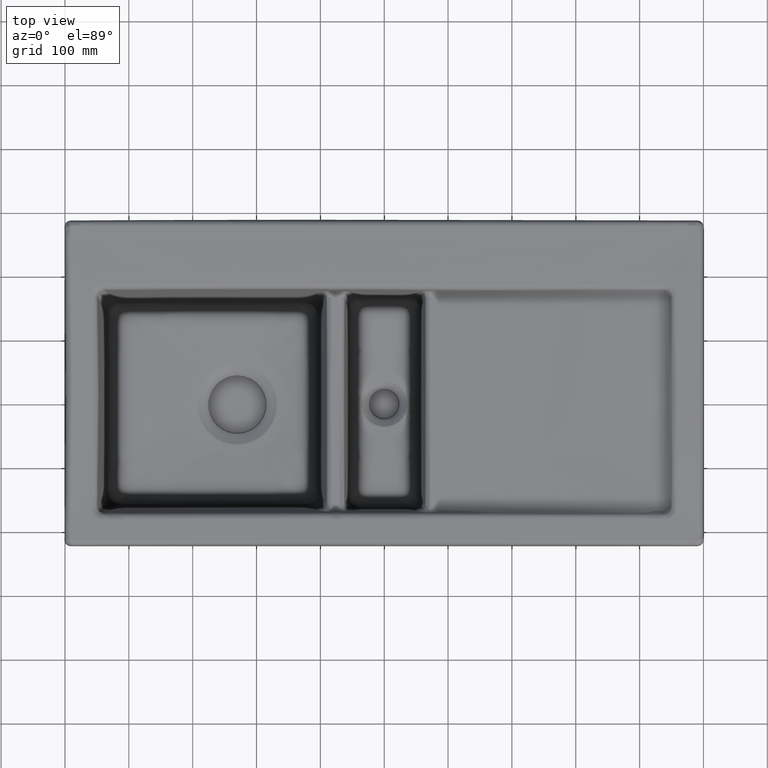
[diagram: clean part render]
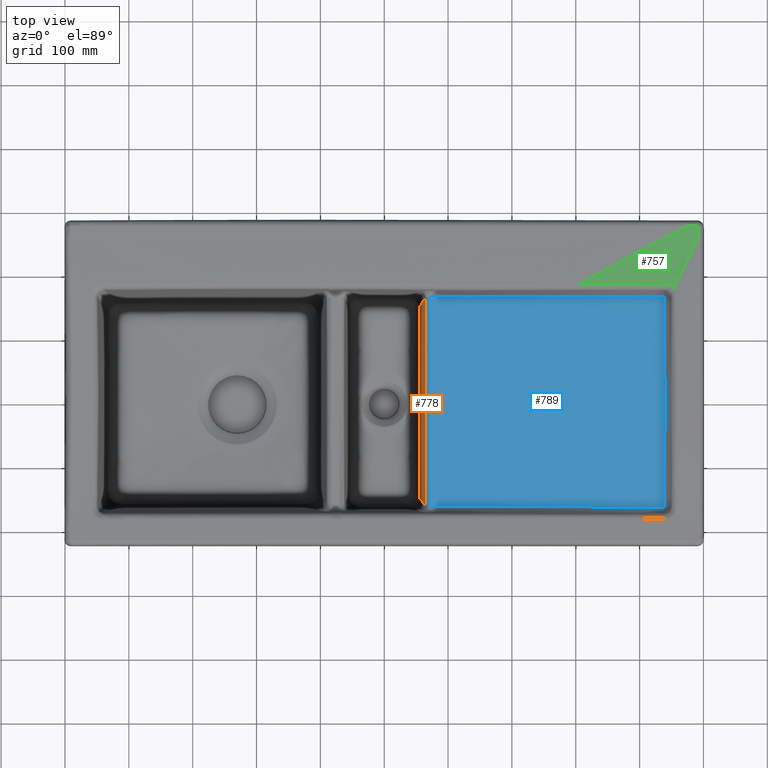
[diagram: same view with three faces highlighted in distinct colors, each labeled with its STEP entity id]
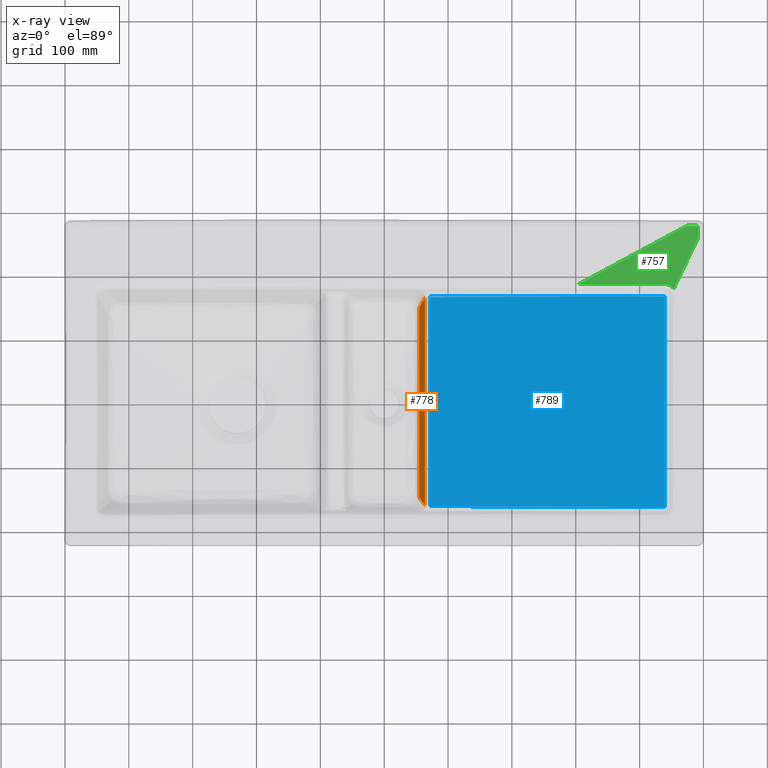
[diagram: x-ray of the same camera — body ghosted, the three highlighted faces saturated]
A machine part, top view with three faces highlighted in distinct colors.
The next image is the same camera in x-ray (body ghosted, the three faces saturated) — at least one of them is partly hidden behind the body in this view.
Their STEP definitions:

[orange] entity #778 — the highlighted face is a freeform B-spline surface patch.
#778=ADVANCED_FACE('',(#1270),#938,.F.);
#938=B_SPLINE_SURFACE_WITH_KNOTS('',1,3,((#33426,#33427,#33428,#33429),
(#33430,#33431,#33432,#33433)),.UNSPECIFIED.,.F.,.F.,.F.,(2,2),(4,4),(0.,
1.),(0.,1.),.UNSPECIFIED.);
#1270=FACE_OUTER_BOUND('',#1629,.T.);
#1629=EDGE_LOOP('',(#3263,#3264,#3265,#3266,#3267,#3268,#3269,#3270));
#3263=ORIENTED_EDGE('',*,*,#4624,.T.);
#3264=ORIENTED_EDGE('',*,*,#4627,.T.);
#3265=ORIENTED_EDGE('',*,*,#4630,.T.);
#3266=ORIENTED_EDGE('',*,*,#4631,.T.);
#3267=ORIENTED_EDGE('',*,*,#4635,.T.);
#3268=ORIENTED_EDGE('',*,*,#4660,.F.);
#3269=ORIENTED_EDGE('',*,*,#4632,.T.);
#3270=ORIENTED_EDGE('',*,*,#4634,.T.);
#3794=VERTEX_POINT('',#31691);
#3796=VERTEX_POINT('',#31808);
#3810=VERTEX_POINT('',#32465);
#3811=VERTEX_POINT('',#32466);
#3812=VERTEX_POINT('',#32521);
#3813=VERTEX_POINT('',#32616);
#3814=VERTEX_POINT('',#32677);
#3815=VERTEX_POINT('',#32729);
#4624=EDGE_CURVE('',#3810,#3811,#5298,.T.);
#4627=EDGE_CURVE('',#3811,#3812,#5300,.T.);
#4630=EDGE_CURVE('',#3812,#3813,#5301,.T.);
#4631=EDGE_CURVE('',#3813,#3796,#5302,.T.);
#4632=EDGE_CURVE('',#3814,#3794,#5303,.T.);
#4634=EDGE_CURVE('',#3794,#3810,#5305,.T.);
#4635=EDGE_CURVE('',#3796,#3815,#5306,.T.);
#4660=EDGE_CURVE('',#3814,#3815,#5326,.T.);
#5298=B_SPLINE_CURVE_WITH_KNOTS('',3,(#32461,#32462,#32463,#32464),
 .UNSPECIFIED.,.F.,.F.,(4,4),(0.,1.),.UNSPECIFIED.);
#5300=B_SPLINE_CURVE_WITH_KNOTS('',3,(#32517,#32518,#32519,#32520),
 .UNSPECIFIED.,.F.,.F.,(4,4),(0.,1.),.UNSPECIFIED.);
#5301=B_SPLINE_CURVE_WITH_KNOTS('',3,(#32617,#32618,#32619,#32620),
 .UNSPECIFIED.,.F.,.F.,(4,4),(0.,1.),.UNSPECIFIED.);
#5302=B_SPLINE_CURVE_WITH_KNOTS('',3,(#32657,#32658,#32659,#32660),
 .UNSPECIFIED.,.F.,.F.,(4,4),(0.,1.),.UNSPECIFIED.);
#5303=B_SPLINE_CURVE_WITH_KNOTS('',3,(#32673,#32674,#32675,#32676),
 .UNSPECIFIED.,.F.,.F.,(4,4),(0.,1.),.UNSPECIFIED.);
#5305=B_SPLINE_CURVE_WITH_KNOTS('',3,(#32709,#32710,#32711,#32712),
 .UNSPECIFIED.,.F.,.F.,(4,4),(0.,1.),.UNSPECIFIED.);
#5306=B_SPLINE_CURVE_WITH_KNOTS('',3,(#32725,#32726,#32727,#32728),
 .UNSPECIFIED.,.F.,.F.,(4,4),(0.,1.),.UNSPECIFIED.);
#5326=B_SPLINE_CURVE_WITH_KNOTS('',3,(#33422,#33423,#33424,#33425),
 .UNSPECIFIED.,.F.,.F.,(4,4),(0.,1.),.UNSPECIFIED.);
#31691=CARTESIAN_POINT('',(54.7709907172785,149.927573718365,-114.133065585962));
#31808=CARTESIAN_POINT('',(54.7490416734624,-146.941787767845,-114.341763947091));
#32461=CARTESIAN_POINT('',(54.7661305298584,84.1916468980175,-114.179277765311));
#32462=CARTESIAN_POINT('',(54.7643644077343,60.3041576916468,-114.196070605852));
#32463=CARTESIAN_POINT('',(54.7625982856103,36.416668485276,-114.212863446394));
#32464=CARTESIAN_POINT('',(54.7608321634862,12.5291792789053,-114.229656286935));
#32465=CARTESIAN_POINT('',(54.7661305298584,84.1916468980175,-114.179277765311));
#32466=CARTESIAN_POINT('',(54.7608320356127,12.5274497399983,-114.229657502796));
#32517=CARTESIAN_POINT('',(54.7608321634862,12.5291792789054,-114.229656286935));
#32518=CARTESIAN_POINT('',(54.760213631294,4.16329060953505,-114.235537484126));
#32519=CARTESIAN_POINT('',(54.7595950991017,-4.20259805983526,-114.241418681316));
#32520=CARTESIAN_POINT('',(54.7589765669095,-12.5684867292056,-114.247299878507));
#32521=CARTESIAN_POINT('',(54.7589764426014,-12.5701680445044,-114.247301060467));
#32616=CARTESIAN_POINT('',(54.7536785507922,-84.2262170149801,-114.297675069799));
#32617=CARTESIAN_POINT('',(54.7589765669095,-12.5684867292055,-114.247299878507));
#32618=CARTESIAN_POINT('',(54.7572105615371,-36.4543968244637,-114.264091608937));
#32619=CARTESIAN_POINT('',(54.7554445561646,-60.3403069197219,-114.280883339368));
#32620=CARTESIAN_POINT('',(54.7536785507922,-84.2262170149801,-114.297675069799));
#32657=CARTESIAN_POINT('',(54.7536785507922,-84.2262170149801,-114.297675069799));
#32658=CARTESIAN_POINT('',(54.7521329250176,-105.131407265481,-114.312371362211));
#32659=CARTESIAN_POINT('',(54.7505872992429,-126.036597515982,-114.327067654622));
#32660=CARTESIAN_POINT('',(54.7490416734683,-146.941787766484,-114.341763947034));
#32673=CARTESIAN_POINT('',(63.7774931988354,163.902530469853,-28.4964281475513));
#32674=CARTESIAN_POINT('',(60.5386088906132,158.991461895319,-59.2927513347334));
#32675=CARTESIAN_POINT('',(57.5364413967633,154.333142977708,-87.8382971475143));
#32676=CARTESIAN_POINT('',(54.7709907172857,149.927573717017,-114.133065585894));
#32677=CARTESIAN_POINT('',(63.7774959266929,163.910365394238,-28.4964022105084));
#32709=CARTESIAN_POINT('',(54.7709907172852,149.927573717017,-114.133065585899));
#32710=CARTESIAN_POINT('',(54.7693706548096,128.015598110684,-114.148469645703));
#32711=CARTESIAN_POINT('',(54.767750592334,106.103622504351,-114.163873705507));
#32712=CARTESIAN_POINT('',(54.7661305298584,84.1916468980175,-114.179277765311));
#32725=CARTESIAN_POINT('',(54.7490416734683,-146.941787766483,-114.341763947034));
#32726=CARTESIAN_POINT('',(57.7582559660553,-151.567674152526,-85.7292149718404));
#32727=CARTESIAN_POINT('',(60.7674702586422,-156.193560538568,-57.1166659966464));
#32728=CARTESIAN_POINT('',(63.7766845512292,-160.819446924611,-28.5041170214524));
#32729=CARTESIAN_POINT('',(63.7766845513091,-160.819446924611,-28.5041170209095));
#33422=CARTESIAN_POINT('',(63.7774927463532,163.918191523429,-28.4964324499157));
#33423=CARTESIAN_POINT('',(63.7805840132679,55.6723048153947,-28.4670397190661));
#33424=CARTESIAN_POINT('',(63.7788698249731,-52.5735585542686,-28.4833387568248));
#33425=CARTESIAN_POINT('',(63.7766845514724,-160.819446924611,-28.504117020008));
#33426=CARTESIAN_POINT('',(54.6948579689191,173.436095401326,-114.856959526123));
#33427=CARTESIAN_POINT('',(54.6948579689191,63.8910381538644,-114.856959526123));
#33428=CARTESIAN_POINT('',(54.6948579689191,-45.6540190935975,-114.856959526123));
#33429=CARTESIAN_POINT('',(54.6948579689191,-155.199076341059,-114.856959526123));
#33430=CARTESIAN_POINT('',(63.833842802879,165.819659219952,-27.9606385198726));
#33431=CARTESIAN_POINT('',(63.833842802879,56.2746019724906,-27.9606385198726));
#33432=CARTESIAN_POINT('',(63.833842802879,-53.2704552749711,-27.9606385198726));
#33433=CARTESIAN_POINT('',(63.833842802879,-162.815512522433,-27.9606385198726));

[blue] entity #789 — the highlighted face is a freeform B-spline surface patch.
#789=ADVANCED_FACE('',(#1281),#944,.T.);
#944=B_SPLINE_SURFACE_WITH_KNOTS('',3,1,((#34065,#34066),(#34067,#34068),
(#34069,#34070),(#34071,#34072),(#34073,#34074),(#34075,#34076),(#34077,
#34078),(#34079,#34080),(#34081,#34082),(#34083,#34084),(#34085,#34086),
(#34087,#34088)),.UNSPECIFIED.,.F.,.F.,.F.,(4,1,1,1,1,1,1,1,1,4),(2,2),
(0.,0.052952468371752,0.139305508239598,0.225658548107443,0.312011587975289,
0.484717667710981,0.657423747446673,0.830129827182365,0.91648286705021,
1.),(0.,1.),.UNSPECIFIED.);
#1281=FACE_OUTER_BOUND('',#1640,.T.);
#1640=EDGE_LOOP('',(#3318,#3319,#3320,#3321,#3322,#3323,#3324,#3325,#3326));
#3318=ORIENTED_EDGE('',*,*,#4667,.T.);
#3319=ORIENTED_EDGE('',*,*,#4669,.T.);
#3320=ORIENTED_EDGE('',*,*,#4354,.T.);
#3321=ORIENTED_EDGE('',*,*,#4671,.T.);
#3322=ORIENTED_EDGE('',*,*,#4674,.T.);
#3323=ORIENTED_EDGE('',*,*,#4673,.T.);
#3324=ORIENTED_EDGE('',*,*,#4675,.T.);
#3325=ORIENTED_EDGE('',*,*,#4676,.T.);
#3326=ORIENTED_EDGE('',*,*,#4677,.T.);
#3661=VERTEX_POINT('',#25537);
#3663=VERTEX_POINT('',#25543);
#3827=VERTEX_POINT('',#33344);
#3828=VERTEX_POINT('',#33444);
#3830=VERTEX_POINT('',#33576);
#3831=VERTEX_POINT('',#33581);
#3832=VERTEX_POINT('',#33684);
#3833=VERTEX_POINT('',#33738);
#3834=VERTEX_POINT('',#33752);
#4354=EDGE_CURVE('',#3663,#3661,#5114,.T.);
#4667=EDGE_CURVE('',#3831,#3830,#5331,.T.);
#4669=EDGE_CURVE('',#3830,#3663,#5332,.T.);
#4671=EDGE_CURVE('',#3661,#3832,#5334,.T.);
#4673=EDGE_CURVE('',#3834,#3833,#5336,.T.);
#4674=EDGE_CURVE('',#3832,#3834,#5337,.T.);
#4675=EDGE_CURVE('',#3833,#3827,#5338,.T.);
#4676=EDGE_CURVE('',#3827,#3828,#5339,.T.);
#4677=EDGE_CURVE('',#3828,#3831,#5340,.T.);
#5114=B_SPLINE_CURVE_WITH_KNOTS('',3,(#25539,#25540,#25541,#25542),
 .UNSPECIFIED.,.F.,.F.,(4,4),(0.,1.),.UNSPECIFIED.);
#5331=B_SPLINE_CURVE_WITH_KNOTS('',3,(#33577,#33578,#33579,#33580),
 .UNSPECIFIED.,.F.,.F.,(4,4),(0.,1.),.UNSPECIFIED.);
#5332=B_SPLINE_CURVE_WITH_KNOTS('',3,(#33603,#33604,#33605,#33606,#33607,
#33608,#33609,#33610,#33611,#33612,#33613,#33614,#33615,#33616,#33617,#33618,
#33619,#33620,#33621,#33622,#33623,#33624,#33625,#33626),.UNSPECIFIED.,
 .F.,.F.,(4,2,2,2,1,1,1,1,1,1,2,2,2,2,4),(0.,0.125,0.25,0.375,0.4375,0.46875,
0.484375,0.4921875,0.49609375,0.498046875,0.4990234375,0.5,0.75,0.875,1.),
 .UNSPECIFIED.);
#5334=B_SPLINE_CURVE_WITH_KNOTS('',3,(#33685,#33686,#33687,#33688),
 .UNSPECIFIED.,.F.,.F.,(4,4),(0.,1.),.UNSPECIFIED.);
#5336=B_SPLINE_CURVE_WITH_KNOTS('',3,(#33739,#33740,#33741,#33742,#33743,
#33744,#33745,#33746,#33747,#33748,#33749,#33750,#33751),.UNSPECIFIED.,
 .F.,.F.,(4,2,1,1,1,2,2,4),(0.,0.499999999999999,0.75,0.875,0.937499999999999,
0.968749999999999,0.984375,1.),.UNSPECIFIED.);
#5337=B_SPLINE_CURVE_WITH_KNOTS('',3,(#33753,#33754,#33755,#33756,#33757,
#33758,#33759,#33760,#33761,#33762,#33763),.UNSPECIFIED.,.F.,.F.,(4,2,2,
2,1,4),(0.,0.5,0.562499999999999,0.624999999999998,0.749999999999999,1.),
 .UNSPECIFIED.);
#5338=B_SPLINE_CURVE_WITH_KNOTS('',3,(#33914,#33915,#33916,#33917),
 .UNSPECIFIED.,.F.,.F.,(4,4),(0.,1.),.UNSPECIFIED.);
#5339=B_SPLINE_CURVE_WITH_KNOTS('',3,(#34017,#34018,#34019,#34020),
 .UNSPECIFIED.,.F.,.F.,(4,4),(0.,1.),.UNSPECIFIED.);
#5340=B_SPLINE_CURVE_WITH_KNOTS('',3,(#34033,#34034,#34035,#34036,#34037,
#34038,#34039,#34040,#34041,#34042,#34043,#34044,#34045,#34046),
 .UNSPECIFIED.,.F.,.F.,(4,2,1,1,1,1,2,2,4),(0.,0.249999999999994,0.374999999999991,
0.43749999999999,0.468749999999989,0.484374999999989,0.492187499999989,
0.499999999999988,1.),.UNSPECIFIED.);
#25537=CARTESIAN_POINT('',(439.034879460699,166.130586375618,-13.3548676672238));
#25539=CARTESIAN_POINT('',(439.533276217138,165.632862331858,-13.3371056541225));
#25540=CARTESIAN_POINT('',(439.533096657149,165.908941362423,-13.3414181505129));
#25541=CARTESIAN_POINT('',(439.31104528191,166.130548574326,-13.3493092932428));
#25542=CARTESIAN_POINT('',(439.034880027934,166.130586375851,-13.3548676558119));
#25543=CARTESIAN_POINT('',(439.53327627774,165.632524219095,-13.3371003758047));
#33344=CARTESIAN_POINT('',(71.5470830644911,165.579831830276,-21.3358193868284));
#33444=CARTESIAN_POINT('',(71.5547055088538,-162.50836230305,-21.3432099478971));
#33576=CARTESIAN_POINT('',(439.548160469104,-163.488478208944,-13.2438856659256));
#33577=CARTESIAN_POINT('',(439.047881762935,-163.987201327335,-13.2589696072825));
#33578=CARTESIAN_POINT('',(439.325005969043,-163.988409286888,-13.2529404355333));
#33579=CARTESIAN_POINT('',(439.548028450086,-163.765899927057,-13.2462490537555));
#33580=CARTESIAN_POINT('',(439.548160469105,-163.488478075875,-13.2438856647933));
#33581=CARTESIAN_POINT('',(439.047881762957,-163.987201327337,-13.258969607282));
#33603=CARTESIAN_POINT('',(439.548160469102,-163.488478342014,-13.2438856670579));
#33604=CARTESIAN_POINT('',(439.548239122288,-149.774618652221,-13.127196249133));
#33605=CARTESIAN_POINT('',(439.551113410071,-136.062539217514,-12.8690164956024));
#33606=CARTESIAN_POINT('',(439.557425976567,-108.637621353857,-12.4070593829658));
#33607=CARTESIAN_POINT('',(439.560675450653,-94.924611637485,-12.2155267133655));
#33608=CARTESIAN_POINT('',(439.567433762245,-67.4976704290727,-11.9256154343009));
#33609=CARTESIAN_POINT('',(439.571006854199,-53.7837907732018,-11.82352504687));
#33610=CARTESIAN_POINT('',(439.576973864487,-33.2127973393627,-11.7241601971278));
#33611=CARTESIAN_POINT('',(439.580102945823,-22.9272541850483,-11.6881443091624));
#33612=CARTESIAN_POINT('',(439.584056152403,-10.9274586831877,-11.6685031303531));
#33613=CARTESIAN_POINT('',(439.586114390693,-4.92757290781445,-11.6640845078507));
#33614=CARTESIAN_POINT('',(439.58716466699,-1.92763435983751,-11.6632016240813));
#33615=CARTESIAN_POINT('',(439.587695044129,-0.427666280809536,-11.6630928859467));
#33616=CARTESIAN_POINT('',(439.587961535877,0.322317446323487,-11.6631218379303));
#33617=CARTESIAN_POINT('',(439.588076025188,0.643738975261237,-11.6631521156495));
#33618=CARTESIAN_POINT('',(439.58815241322,0.858019979189024,-11.6631762735371));
#33619=CARTESIAN_POINT('',(439.588206933636,1.0107981618351,-11.6631971766066));
#33620=CARTESIAN_POINT('',(439.593850734847,16.8170172874661,-11.6655653739847));
#33621=CARTESIAN_POINT('',(439.592176116571,38.4033785577344,-11.7038093686988));
#33622=CARTESIAN_POINT('',(439.578486921542,79.5444397839345,-12.0321457128964));
#33623=CARTESIAN_POINT('',(439.572056673064,94.7183499278137,-12.1884331164867));
#33624=CARTESIAN_POINT('',(439.555460713667,127.985522708036,-12.6612673050345));
#33625=CARTESIAN_POINT('',(439.54529695144,146.077813124112,-13.0316560229156));
#33626=CARTESIAN_POINT('',(439.533276338339,165.632186106333,-13.3370950974809));
#33684=CARTESIAN_POINT('',(305.968518657211,165.992293267107,-16.1023651159856));
#33685=CARTESIAN_POINT('',(439.034879177081,166.130586375501,-13.3548676729297));
#33686=CARTESIAN_POINT('',(395.128021977926,166.112524313068,-14.2382064712706));
#33687=CARTESIAN_POINT('',(350.772568343461,166.060437754106,-15.1507027441969));
#33688=CARTESIAN_POINT('',(305.968518271347,165.992293266518,-16.1023651241826));
#33738=CARTESIAN_POINT('',(161.850510017858,165.728398485528,-19.2621462496021));
#33739=CARTESIAN_POINT('',(224.334813704492,165.855218889883,-17.8681957079217));
#33740=CARTESIAN_POINT('',(214.168876233291,165.836761837364,-18.0920529004707));
#33741=CARTESIAN_POINT('',(203.903406477933,165.817486995303,-18.3195616364173));
#33742=CARTESIAN_POINT('',(188.355903417363,165.786892867684,-18.6663633106494));
#33743=CARTESIAN_POINT('',(180.544827280192,165.771175366804,-18.84114835398));
#33744=CARTESIAN_POINT('',(171.366587057781,165.752003255144,-19.0474953145039));
#33745=CARTESIAN_POINT('',(166.761137430938,165.74219605774,-19.1512773001004));
#33746=CARTESIAN_POINT('',(164.783874123218,165.737944260207,-19.1958857070633));
#33747=CARTESIAN_POINT('',(163.794659272368,165.735810132214,-19.2182116467493));
#33748=CARTESIAN_POINT('',(163.47586269154,165.735122607729,-19.2254078016273));
#33749=CARTESIAN_POINT('',(162.661819359355,165.733356221391,-19.2437877383276));
#33750=CARTESIAN_POINT('',(162.255707982005,165.732469708773,-19.2529593122901));
#33751=CARTESIAN_POINT('',(161.850506893398,165.731580121901,-19.2621124597812));
#33752=CARTESIAN_POINT('',(224.33481346243,165.855144952493,-17.8681786293325));
#33753=CARTESIAN_POINT('',(305.968518271347,165.992293266518,-16.1023651241826));
#33754=CARTESIAN_POINT('',(292.261326025526,165.971445383561,-16.393513339011));
#33755=CARTESIAN_POINT('',(278.512146447071,165.949103251384,-16.6882398440718));
#33756=CARTESIAN_POINT('',(262.997083670661,165.922891661969,-17.0239180810879));
#33757=CARTESIAN_POINT('',(261.272531754523,165.919964322421,-17.0612726518571));
#33758=CARTESIAN_POINT('',(257.822115818055,165.914081883039,-17.1360958872543));
#33759=CARTESIAN_POINT('',(256.062623519523,165.911068426547,-17.1742960746402));
#33760=CARTESIAN_POINT('',(251.099720634206,165.902539193396,-17.2821624789565));
#33761=CARTESIAN_POINT('',(241.141015803493,165.885310742139,-17.4990822228999));
#33762=CARTESIAN_POINT('',(231.083613792337,165.867471862913,-17.7195849728055));
#33763=CARTESIAN_POINT('',(224.334813704492,165.855218889883,-17.8681957079217));
#33914=CARTESIAN_POINT('',(161.850506893398,165.731580121901,-19.2621124597812));
#33915=CARTESIAN_POINT('',(123.665350628989,165.647747638057,-20.1246826183642));
#33916=CARTESIAN_POINT('',(93.5642093329596,165.544296877738,-20.8224467789675));
#33917=CARTESIAN_POINT('',(71.5470830541068,165.5798318304,-21.3358189414662));
#34017=CARTESIAN_POINT('',(71.5470830541068,165.579831830401,-21.3358189414662));
#34018=CARTESIAN_POINT('',(71.523629907687,84.0083496267101,-21.3137780370015));
#34019=CARTESIAN_POINT('',(71.5260477273752,-25.3576004634721,-21.3159677810742));
#34020=CARTESIAN_POINT('',(71.5547053847978,-162.508362300832,-21.3432043754555));
#34033=CARTESIAN_POINT('',(71.5547053847978,-162.508362300832,-21.3432043754555));
#34034=CARTESIAN_POINT('',(103.317043297852,-162.588173276906,-20.6360870325146));
#34035=CARTESIAN_POINT('',(134.51042669996,-162.678770293056,-19.9437711190794));
#34036=CARTESIAN_POINT('',(180.447076280289,-162.829496585032,-18.9272796677941));
#34037=CARTESIAN_POINT('',(203.202044709989,-162.908571391752,-18.4245279112875));
#34038=CARTESIAN_POINT('',(229.376135837862,-163.00706773039,-17.8475325444007));
#34039=CARTESIAN_POINT('',(242.369838608371,-163.057848001031,-17.5614122737642));
#34040=CARTESIAN_POINT('',(248.843354322883,-163.083617686395,-17.4189452398363));
#34041=CARTESIAN_POINT('',(251.612717702671,-163.094742806144,-17.3580148944045));
#34042=CARTESIAN_POINT('',(253.457848734453,-163.102177505892,-17.3174228606807));
#34043=CARTESIAN_POINT('',(254.424310102647,-163.10608402449,-17.2961632109131));
#34044=CARTESIAN_POINT('',(311.429494159484,-163.337164951656,-16.0423069086775));
#34045=CARTESIAN_POINT('',(372.678301452959,-163.661308311526,-14.7026178953187));
#34046=CARTESIAN_POINT('',(439.047881762981,-163.987201327337,-13.2589696072815));
#34065=CARTESIAN_POINT('',(441.798490298134,-165.898637906231,-13.2139376440411));
#34066=CARTESIAN_POINT('',(69.316340305362,-175.72094264185,-21.3945143622469));
#34067=CARTESIAN_POINT('',(441.797672432961,-160.007812711151,-13.1709557254519));
#34068=CARTESIAN_POINT('',(69.3163298935384,-168.961295502799,-21.3939671814008));
#34069=CARTESIAN_POINT('',(441.796740829061,-144.511340891826,-12.9851715618171));
#34070=CARTESIAN_POINT('',(69.3163180337651,-151.178262934581,-21.3916020581303));
#34071=CARTESIAN_POINT('',(441.798309247864,-119.410924213993,-12.515795109011));
#34072=CARTESIAN_POINT('',(69.3163380005035,-122.371866601505,-21.3856266663134));
#34073=CARTESIAN_POINT('',(441.799124363299,-90.5935323443239,-12.0983111657153));
#34074=CARTESIAN_POINT('',(69.3163483773217,-89.3017045598619,-21.3803118915232));
#34075=CARTESIAN_POINT('',(441.799013303898,-52.1681853693038,-11.7227141290893));
#34076=CARTESIAN_POINT('',(69.3163469634812,-45.2081277009579,-21.3755303575419));
#34077=CARTESIAN_POINT('',(441.798123564046,-4.13406256710079,-11.5419632514452));
#34078=CARTESIAN_POINT('',(69.3163356366577,9.90887442339721,-21.373229310464));
#34079=CARTESIAN_POINT('',(441.798281281246,53.5067552675194,-11.7089474070027));
#34080=CARTESIAN_POINT('',(69.3163376444748,76.0492753236682,-21.3753551004365));
#34081=CARTESIAN_POINT('',(441.798315427051,101.538572806996,-12.1925414959258));
#34082=CARTESIAN_POINT('',(69.3163380791676,131.166248100901,-21.381511489715));
#34083=CARTESIAN_POINT('',(441.79831166415,139.645027122062,-12.8178605039488));
#34084=CARTESIAN_POINT('',(69.3163380312641,174.897763921737,-21.3894721065316));
#34085=CARTESIAN_POINT('',(441.798311633529,158.539494950246,-13.1860720898691));
#34086=CARTESIAN_POINT('',(69.3163380308742,196.582500058973,-21.3941596201132));
#34087=CARTESIAN_POINT('',(441.798311633193,167.82972358982,-13.3251760912588));
#34088=CARTESIAN_POINT('',(69.31633803087,207.243868684387,-21.3959304820869));

[green] entity #757 — the highlighted face is a freeform B-spline surface patch.
#223=(
BOUNDED_CURVE()
B_SPLINE_CURVE(3,(#32260,#32261,#32262,#32263,#32264,#32265,#32266,#32267,
#32268,#32269,#32270,#32271),.UNSPECIFIED.,.F.,.F.)
B_SPLINE_CURVE_WITH_KNOTS((4,2,2,2,2,4),(0.,0.246904776909094,0.373357146575937,
0.499809516242779,0.752714255576465,1.),.UNSPECIFIED.)
CURVE()
GEOMETRIC_REPRESENTATION_ITEM()
RATIONAL_B_SPLINE_CURVE((0.999999807327675,0.999999808144353,0.999999809134811,
0.999999810849955,0.999999811468654,0.999999812774897,0.999999812747456,
0.999999812483722,0.999999812248547,0.999999811664618,0.999999811296712,
0.999999810939745))
REPRESENTATION_ITEM('')
);
#757=ADVANCED_FACE('',(#1249),#928,.T.);
#928=B_SPLINE_SURFACE_WITH_KNOTS('',3,2,((#32288,#32289,#32290,#32291),
(#32292,#32293,#32294,#32295),(#32296,#32297,#32298,#32299),(#32300,#32301,
#32302,#32303),(#32304,#32305,#32306,#32307)),.UNSPECIFIED.,.F.,.F.,.F.,
(4,1,4),(3,1,3),(0.,0.450317678653305,1.),(0.,0.5,1.),.UNSPECIFIED.);
#1249=FACE_OUTER_BOUND('',#1608,.T.);
#1608=EDGE_LOOP('',(#3155,#3156,#3157,#3158,#3159,#3160));
#3155=ORIENTED_EDGE('',*,*,#4614,.F.);
#3156=ORIENTED_EDGE('',*,*,#4615,.F.);
#3157=ORIENTED_EDGE('',*,*,#4613,.T.);
#3158=ORIENTED_EDGE('',*,*,#4558,.T.);
#3159=ORIENTED_EDGE('',*,*,#4560,.T.);
#3160=ORIENTED_EDGE('',*,*,#4616,.F.);
#3777=VERTEX_POINT('',#30769);
#3778=VERTEX_POINT('',#30876);
#3779=VERTEX_POINT('',#30965);
#3802=VERTEX_POINT('',#32197);
#3804=VERTEX_POINT('',#32272);
#3805=VERTEX_POINT('',#32273);
#4558=EDGE_CURVE('',#3777,#3778,#5245,.T.);
#4560=EDGE_CURVE('',#3778,#3779,#5247,.T.);
#4613=EDGE_CURVE('',#3802,#3777,#5290,.T.);
#4614=EDGE_CURVE('',#3804,#3805,#223,.T.);
#4615=EDGE_CURVE('',#3802,#3804,#5291,.T.);
#4616=EDGE_CURVE('',#3805,#3779,#5292,.T.);
#5245=B_SPLINE_CURVE_WITH_KNOTS('',3,(#30844,#30845,#30846,#30847,#30848,
#30849,#30850,#30851,#30852,#30853,#30854,#30855,#30856,#30857,#30858,#30859,
#30860,#30861,#30862,#30863,#30864,#30865,#30866,#30867,#30868,#30869,#30870,
#30871,#30872,#30873,#30874,#30875),.UNSPECIFIED.,.F.,.F.,(4,2,2,2,2,2,
2,1,1,2,2,2,2,2,2,2,4),(0.,0.249999999999961,0.374999999999937,0.437499999999925,
0.499999999999913,0.624999999999898,0.687499999999886,0.71874999999988,
0.734374999999877,0.742187499999876,0.749999999999874,0.812499999999857,
0.843749999999853,0.859374999999851,0.867187499999858,0.874999999999866,
1.),.UNSPECIFIED.);
#5247=B_SPLINE_CURVE_WITH_KNOTS('',3,(#30961,#30962,#30963,#30964),
 .UNSPECIFIED.,.F.,.F.,(4,4),(0.,1.),.UNSPECIFIED.);
#5290=B_SPLINE_CURVE_WITH_KNOTS('',3,(#32217,#32218,#32219,#32220,#32221),
 .UNSPECIFIED.,.F.,.F.,(4,1,4),(0.,0.497339925763757,1.),.UNSPECIFIED.);
#5291=B_SPLINE_CURVE_WITH_KNOTS('',3,(#32274,#32275,#32276,#32277,#32278,
#32279,#32280,#32281,#32282,#32283),.UNSPECIFIED.,.F.,.F.,(4,1,1,1,1,1,
1,4),(0.,0.0301090492520224,0.0871614581195505,0.201266275854607,0.315371093589663,
0.543580729059775,0.771790364529888,1.),.UNSPECIFIED.);
#5292=B_SPLINE_CURVE_WITH_KNOTS('',3,(#32284,#32285,#32286,#32287),
 .UNSPECIFIED.,.F.,.F.,(4,4),(0.,1.),.UNSPECIFIED.);
#30769=CARTESIAN_POINT('',(491.341756769768,257.276938301869,-0.169125923088087));
#30844=CARTESIAN_POINT('',(491.341769872798,257.276965555898,-0.169125657426318));
#30845=CARTESIAN_POINT('',(491.349973695122,258.987027258145,-0.168735618775851));
#30846=CARTESIAN_POINT('',(491.358122428888,260.706487581049,-0.166933173913019));
#30847=CARTESIAN_POINT('',(491.369396551781,263.140327060367,-0.162864179233287));
#30848=CARTESIAN_POINT('',(491.372350157176,263.966891729592,-0.161248307334788));
#30849=CARTESIAN_POINT('',(491.378176921378,265.229904300498,-0.158486039765729));
#30850=CARTESIAN_POINT('',(491.380302165997,265.654764833063,-0.157510681065738));
#30851=CARTESIAN_POINT('',(491.384755613463,266.512183266889,-0.15547818192395));
#30852=CARTESIAN_POINT('',(491.387304509557,266.989551129394,-0.154310299699877));
#30853=CARTESIAN_POINT('',(491.393090055611,268.164262989936,-0.151404701383363));
#30854=CARTESIAN_POINT('',(491.396704120114,268.976783335692,-0.149346471787677));
#30855=CARTESIAN_POINT('',(491.403504067463,270.239790703544,-0.146209433045506));
#30856=CARTESIAN_POINT('',(491.40596852889,270.668161348807,-0.145156663366469));
#30857=CARTESIAN_POINT('',(491.409891873659,271.321762803594,-0.143592460268954));
#30858=CARTESIAN_POINT('',(491.411907209317,271.651324625923,-0.142814177511358));
#30859=CARTESIAN_POINT('',(491.414305330886,272.040640924355,-0.141919198138717));
#30860=CARTESIAN_POINT('',(491.415336085836,272.20852457282,-0.141539141370857));
#30861=CARTESIAN_POINT('',(491.416023080711,272.320676661566,-0.141286629450955));
#30862=CARTESIAN_POINT('',(491.41618865768,272.347664225953,-0.141225819921682));
#30863=CARTESIAN_POINT('',(491.420875140233,273.117244941979,-0.139512461269972));
#30864=CARTESIAN_POINT('',(491.430290413228,273.670718600944,-0.13835774973958));
#30865=CARTESIAN_POINT('',(491.422955357679,274.302335055693,-0.137189030460981));
#30866=CARTESIAN_POINT('',(491.417093341164,274.479789568909,-0.136881518913075));
#30867=CARTESIAN_POINT('',(491.400936743102,274.696138951668,-0.136567315385263));
#30868=CARTESIAN_POINT('',(491.394333890073,274.759950929624,-0.136487063989627));
#30869=CARTESIAN_POINT('',(491.382413346486,274.843194665054,-0.136406056550128));
#30870=CARTESIAN_POINT('',(491.378104409307,274.868863595462,-0.136385612688237));
#30871=CARTESIAN_POINT('',(491.368791431977,274.916041261831,-0.136358243914571));
#30872=CARTESIAN_POINT('',(491.372818135352,274.904824881216,-0.136351283528995));
#30873=CARTESIAN_POINT('',(491.128154499397,275.791423641041,-0.136352246330697));
#30874=CARTESIAN_POINT('',(490.350209278333,276.391401585535,-0.139263546359238));
#30875=CARTESIAN_POINT('',(489.465981681435,276.38685200146,-0.143408120252497));
#30876=CARTESIAN_POINT('',(489.465981630678,276.386852001182,-0.143408120490475));
#30961=CARTESIAN_POINT('',(489.465981579921,276.386852000905,-0.143408120728457));
#30962=CARTESIAN_POINT('',(485.545248683626,276.365421569548,-0.161790850564594));
#30963=CARTESIAN_POINT('',(480.554714190268,276.355474426167,-0.165554015616759));
#30964=CARTESIAN_POINT('',(474.416978377039,276.349842191844,-0.165605440345876));
#30965=CARTESIAN_POINT('',(474.416945983934,276.349848069904,-0.16560538721078));
#32197=CARTESIAN_POINT('',(453.471848801554,178.508595555739,-0.819968260596883));
#32217=CARTESIAN_POINT('',(453.471695241912,178.508462229439,-0.819974979742187));
#32218=CARTESIAN_POINT('',(459.74979527731,191.565986469161,-0.829550461268176));
#32219=CARTESIAN_POINT('',(472.373153487598,217.822706232017,-0.555591264656972));
#32220=CARTESIAN_POINT('',(484.99651169775,244.07896024071,-0.297774791068653));
#32221=CARTESIAN_POINT('',(491.341769872798,257.276965555898,-0.16912565742632));
#32260=CARTESIAN_POINT('',(438.846918505527,185.17357324203,-1.10701524674348));
#32261=CARTESIAN_POINT('',(427.945943200507,185.151980426954,-1.24900632489679));
#32262=CARTESIAN_POINT('',(417.043258666023,185.133130618064,-1.32286889051131));
#32263=CARTESIAN_POINT('',(400.554573835213,185.10915099833,-1.33754096386265));
#32264=CARTESIAN_POINT('',(394.969607341547,185.101776522366,-1.32566480395923));
#32265=CARTESIAN_POINT('',(383.799447827356,185.088388896877,-1.26913210055016));
#32266=CARTESIAN_POINT('',(378.190237643131,185.111359317681,-1.22333268206895));
#32267=CARTESIAN_POINT('',(361.360119483849,185.183933545657,-1.12058740271162));
#32268=CARTESIAN_POINT('',(350.140327844014,185.232713577381,-1.07036755363929));
#32269=CARTESIAN_POINT('',(327.950652031932,185.325196240257,-1.00476767707277));
#32270=CARTESIAN_POINT('',(316.980289273905,185.384633801203,-0.98914837727174));
#32271=CARTESIAN_POINT('',(306.011670078712,185.409965986427,-0.987738045829743));
#32272=CARTESIAN_POINT('',(438.846773368833,185.173572952816,-1.10701703534352));
#32273=CARTESIAN_POINT('',(306.011647059432,185.409998855221,-0.98772391757704));
#32274=CARTESIAN_POINT('',(453.472002397005,178.508729005656,-0.819956271174051));
#32275=CARTESIAN_POINT('',(453.363061638291,178.634402084622,-0.823424182548499));
#32276=CARTESIAN_POINT('',(453.042403417919,178.993648672034,-0.83346105373549));
#32277=CARTESIAN_POINT('',(452.270115341359,179.794171665965,-0.856466110548495));
#32278=CARTESIAN_POINT('',(451.097144704825,180.849165185697,-0.888176897418144));
#32279=CARTESIAN_POINT('',(449.06458581331,182.346304112667,-0.93707362875864));
#32280=CARTESIAN_POINT('',(446.267872386726,183.832162547303,-0.994148415978184));
#32281=CARTESIAN_POINT('',(442.62872115632,184.928184615344,-1.05511917386256));
#32282=CARTESIAN_POINT('',(440.10747236976,185.17607955023,-1.09059623762376));
#32283=CARTESIAN_POINT('',(438.846637596398,185.173572683694,-1.10701876677023));
#32284=CARTESIAN_POINT('',(306.011623897278,185.409994558587,-0.987716307835842));
#32285=CARTESIAN_POINT('',(362.146722052987,215.723277082399,-0.713679352193762));
#32286=CARTESIAN_POINT('',(418.281820208696,246.036559606211,-0.439642396551681));
#32287=CARTESIAN_POINT('',(474.416918364405,276.349842130023,-0.165605440909601));
#32288=CARTESIAN_POINT('',(505.936100823226,293.370385679152,-0.0117369862507351));
#32289=CARTESIAN_POINT('',(504.072267188095,288.059152142158,-0.0597004355266987));
#32290=CARTESIAN_POINT('',(500.34457591306,277.43675235858,0.0202297348580616));
#32291=CARTESIAN_POINT('',(498.480286292739,272.1249542451,-0.0246267146423828));
#32292=CARTESIAN_POINT('',(467.214212827526,272.460338859368,-0.200767176838836));
#32293=CARTESIAN_POINT('',(472.849630292689,267.840031372272,-0.242512964243424));
#32294=CARTESIAN_POINT('',(484.12171194914,258.598320202695,-0.321167992142383));
#32295=CARTESIAN_POINT('',(489.755522644349,253.977561647392,-0.201151468872942));
#32296=CARTESIAN_POINT('',(381.226276241291,226.026348343345,-0.62053792879644));
#32297=CARTESIAN_POINT('',(403.514912227707,222.939776489543,-0.648715517344909));
#32298=CARTESIAN_POINT('',(448.096575191986,216.768678360263,-1.01734367666736));
#32299=CARTESIAN_POINT('',(470.380836590713,213.678857538757,-0.592185122232993));
#32300=CARTESIAN_POINT('',(295.238339655058,179.592357827323,-1.04030868075404));
#32301=CARTESIAN_POINT('',(334.180301781746,178.039233387731,-1.05631061675465));
#32302=CARTESIAN_POINT('',(412.072060565591,174.929514606439,-1.8278527684116));
#32303=CARTESIAN_POINT('',(451.006150536758,173.379056254167,-1.02124614911629));
#32304=CARTESIAN_POINT('',(247.972291064524,154.068414131085,-1.27104924212355));
#32305=CARTESIAN_POINT('',(296.068464660718,153.361066952533,-1.28142581130145));
#32306=CARTESIAN_POINT('',(392.269714802867,151.911951822495,-1.52743536612473));
#32307=CARTESIAN_POINT('',(440.356228130323,151.232035479196,-0.537238807473689));